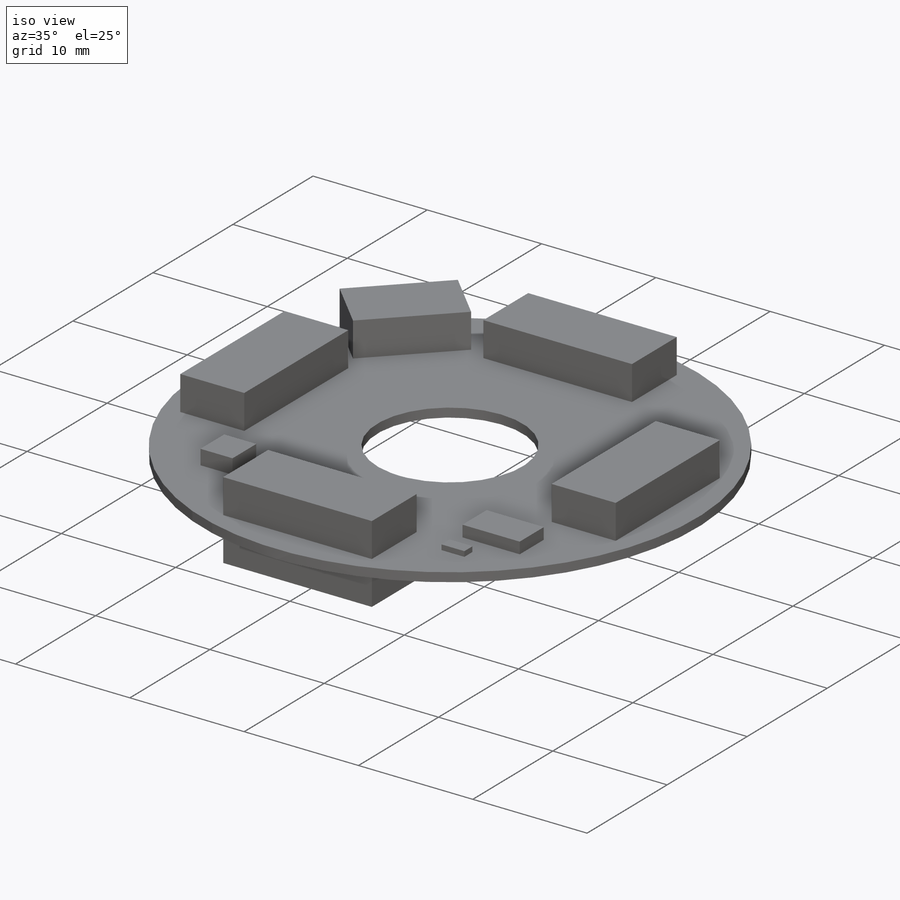
[diagram: iso view]
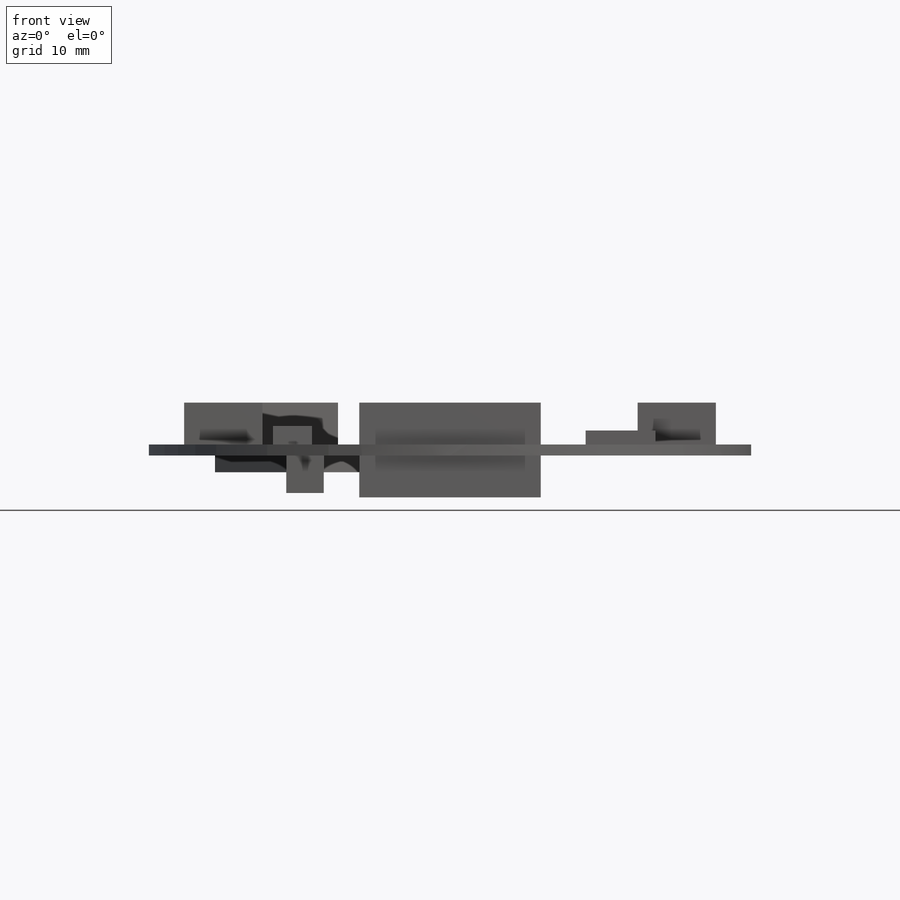
[diagram: front view]
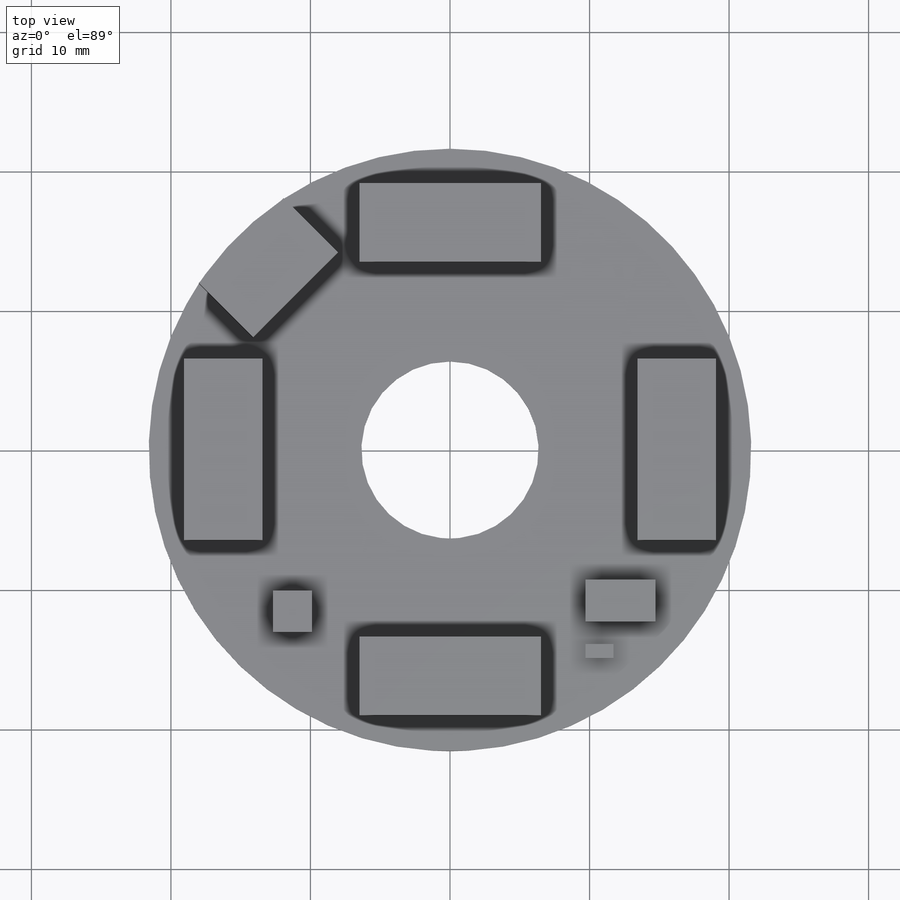
[diagram: top view]
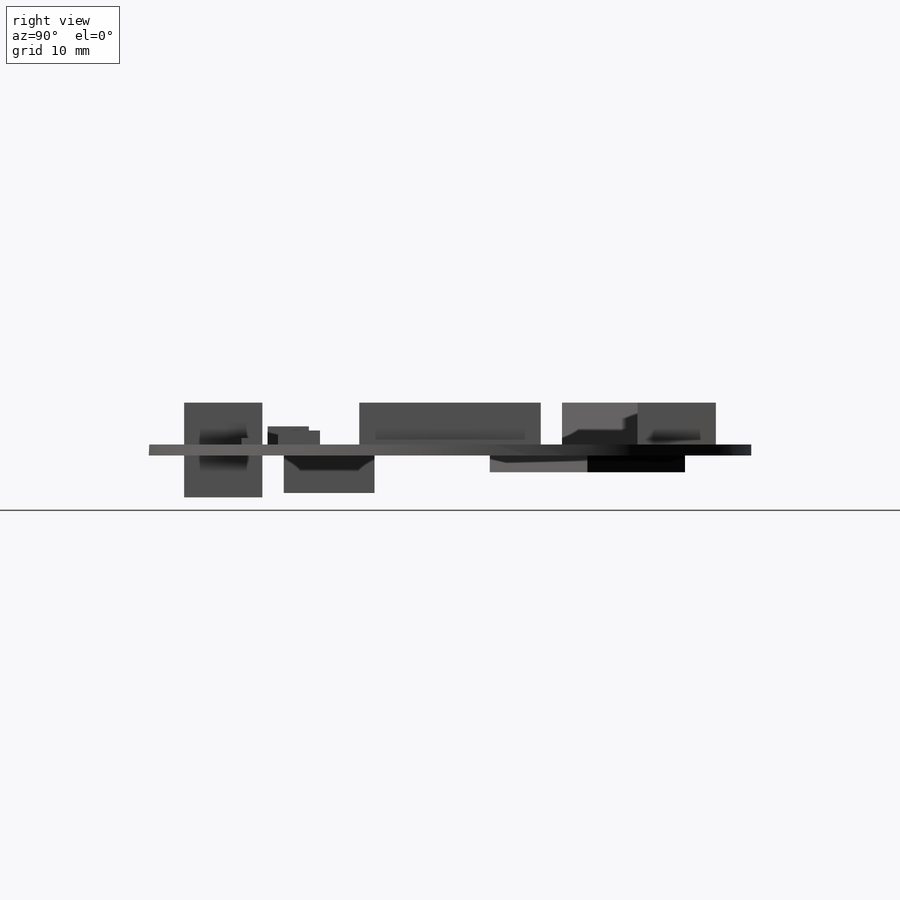
[diagram: right view]
SOLIDWORKS PART (.sldprt)
format: sldprt  version: not decoded by parser v0  size: 481,792 bytes
history: native  units: mm
features: sketch x9, extrude x9, material x1 (+16 scaffold rows collapsed)
feature tree (35):
  scaffold x16  (default folders/planes/origin — collapsed)
  material  "Custom Plastic"
  sketch  "Sketch1"  dims[D1=43.18mm D2=12.7mm]
  extrude  "Boss-Extrude1"  Depth=0.7874mm
  sketch  "Sketch2"  dims[c1.D1=13.0mm c1.D2=5.6mm c1.D3=19.05mm c1.D4=~11.737332mm c2.D4=45.0deg]
  extrude  "Face Board Connectors"  Depth=3mm
  sketch  "Sketch3"  dims[D1=0.0mm]
  extrude  "Bottom Face Board Connector"  Depth=3mm
  sketch  "Sketch4"  dims[c1.D1=~16.235517mm c2.D1=45.0deg c2.D2=5.5mm c2.D3=8.6mm]
  extrude  "Programming Connector"  Depth=3mm
  sketch  "Sketch5"  dims[D1=2.8mm D2=2.95mm]
  extrude  "I2C Translator"  Depth=1.3mm
  sketch  "Sketch6"  dims[D1=5.0mm D2=3.0mm]
  extrude  "Accelerometer"  Depth=1mm
  sketch  "Sketch7"  dims[D1=2.0mm D2=1.0mm]
  extrude  "Boss-Extrude7"  Depth=0.45mm
  sketch  "Sketch8"  dims[c1.D1=~10.666854mm c2.D1=45.0deg c2.D2=9.9mm c2.D3=9.9mm]
  extrude  "Boss-Extrude8"  Depth=1.2mm
  sketch  "Sketch9"  dims[D1=6.5mm D2=2.69mm]
  extrude  "Boss-Extrude9"  Depth=2.69mm
decode coverage: 18 of 18 modeling features carry decoded parameters
note: ~ marks probable driven/reference dimensions
note: suppression state not decoded; provenance and decode notes live in map.json
